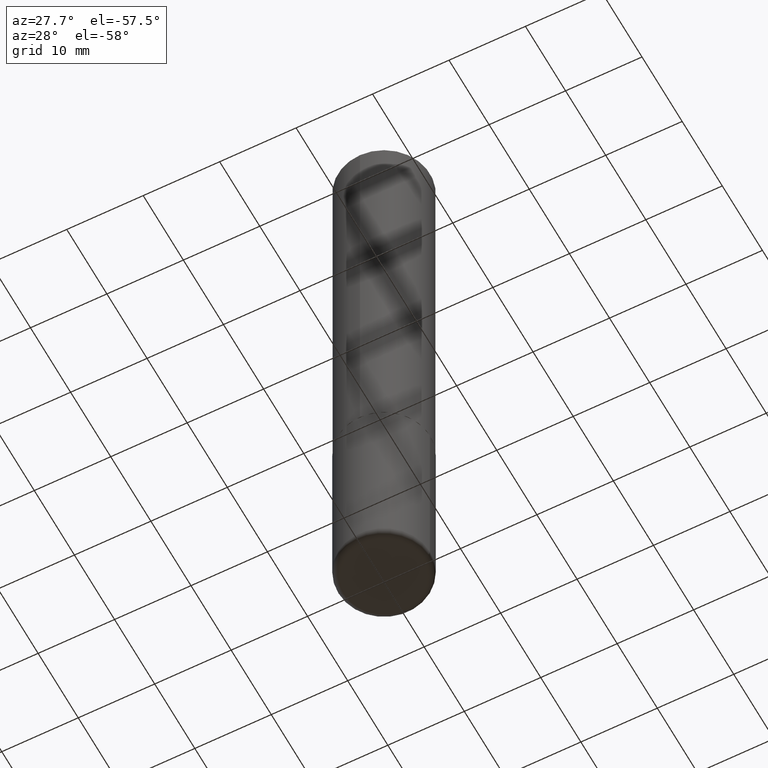
[diagram: clean part render]
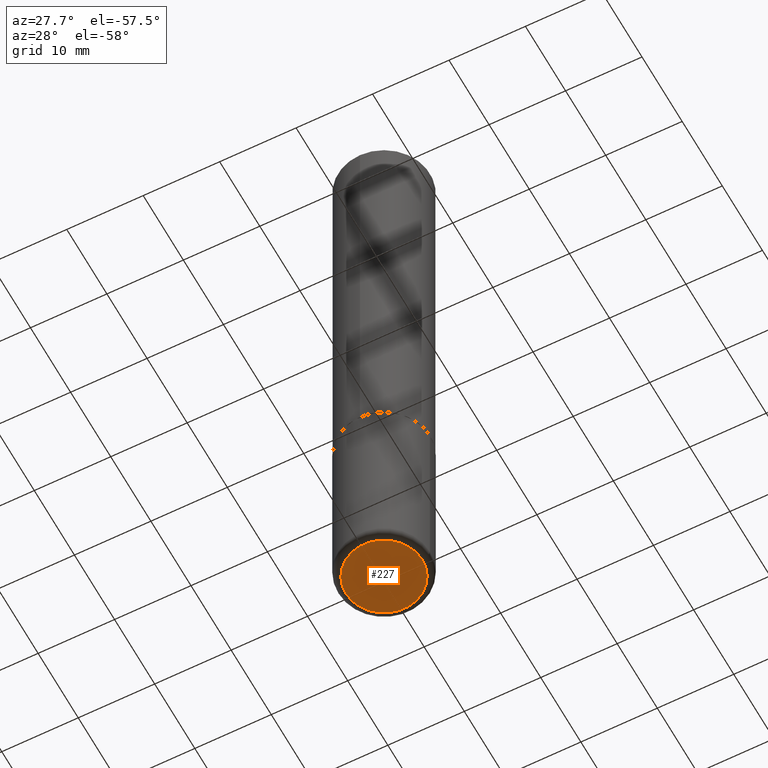
[diagram: same view with one face highlighted and labeled with its STEP entity id]
A machine part, auxiliary view. The second image highlights one B-rep face of the part: STEP entity #227.
In plain terms, the highlighted planar face has unit normal (0, -0, -1).
Its self-contained STEP definition (entity closure, byte-faithful):
#7 = VERTEX_POINT ( 'NONE', #119 ) ;
#60 = CIRCLE ( 'NONE', #260, 0.1968000000000000027 ) ;
#84 = AXIS2_PLACEMENT_3D ( 'NONE', #167, #393, #104 ) ;
#96 = CARTESIAN_POINT ( 'NONE',  ( 1.656106381740712274E-29, -2.048112544989781332E-14, -3.267700000000000937 ) ) ;
#104 = DIRECTION ( 'NONE',  ( 1.000000000000000000, -6.982962677686261977E-15, 0.000000000000000000 ) ) ;
#119 = CARTESIAN_POINT ( 'NONE',  ( 0.1968000000000000027, -1.278336062590640454E-14, -3.267700000000000937 ) ) ;
#141 = CARTESIAN_POINT ( 'NONE',  ( 7.991058417971172834E-29, -1.140911357093774960E-14, -3.267700000000000937 ) ) ;
#165 = DIRECTION ( 'NONE',  ( 1.000000000000000000, -6.982962677686261977E-15, 0.000000000000000000 ) ) ;
#167 = CARTESIAN_POINT ( 'NONE',  ( 7.991058417971172834E-29, -1.140911357093774960E-14, -3.267700000000000937 ) ) ;
#189 = FACE_OUTER_BOUND ( 'NONE', #365, .T. ) ;
#197 = DIRECTION ( 'NONE',  ( -2.445468806185136597E-29, 3.491481338843145583E-15, 1.000000000000000000 ) ) ;
#220 = PLANE ( 'NONE',  #332 ) ;
#226 = CARTESIAN_POINT ( 'NONE',  ( -0.1968000000000000027, -9.802006365641918959E-15, -3.267700000000000937 ) ) ;
#227 = ADVANCED_FACE ( 'NONE', ( #189 ), #220, .T. ) ;
#231 = VERTEX_POINT ( 'NONE', #226 ) ;
#233 = ORIENTED_EDGE ( 'NONE', *, *, #286, .F. ) ;
#260 = AXIS2_PLACEMENT_3D ( 'NONE', #141, #197, #165 ) ;
#281 = CIRCLE ( 'NONE', #84, 0.1968000000000000027 ) ;
#283 = DIRECTION ( 'NONE',  ( -1.000000000000000000, 6.982962677686265922E-15, -4.876176775795935793E-29 ) ) ;
#286 = EDGE_CURVE ( 'NONE', #231, #7, #281, .T. ) ;
#314 = EDGE_CURVE ( 'NONE', #7, #231, #60, .T. ) ;
#332 = AXIS2_PLACEMENT_3D ( 'NONE', #96, #351, #283 ) ;
#342 = ORIENTED_EDGE ( 'NONE', *, *, #314, .F. ) ;
#351 = DIRECTION ( 'NONE',  ( 2.438088387897960049E-29, -3.491481338843145188E-15, -1.000000000000000000 ) ) ;
#365 = EDGE_LOOP ( 'NONE', ( #342, #233 ) ) ;
#393 = DIRECTION ( 'NONE',  ( -2.445468806185136597E-29, 3.491481338843145583E-15, 1.000000000000000000 ) ) ;